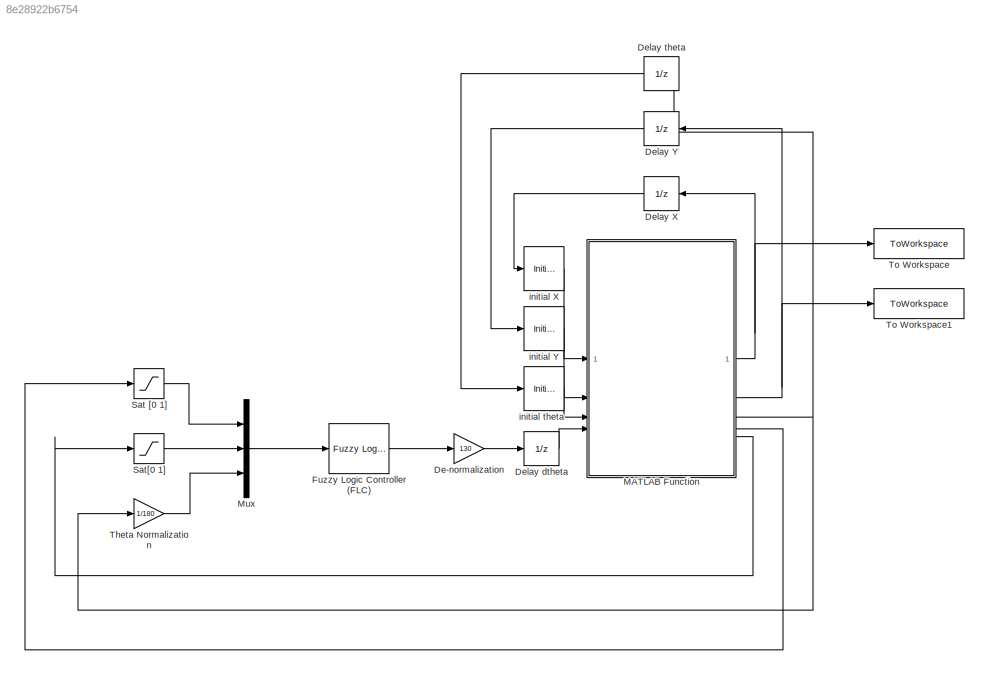
MODEL slx_8e28922b6754
KIND model
CONFIG AbsTol = auto
CONFIG EnableMultiTasking = off
CONFIG FixedStep = auto
CONFIG MaxStep = auto
CONFIG MinStep = auto
CONFIG RelTol = 1e-3
CONFIG SampleTimeConstraint = Unconstrained
CONFIG SolverName = VariableStepAuto
CONFIG StartTime = 0.0
CONFIG StopTime = 300
BLOCK [Gain] De-normalization
  Gain = 130
BLOCK [UnitDelay] Delay X
  HasFrameUpgradeWarning = on
  SampleTime = 0.1
BLOCK [UnitDelay] Delay Y
  HasFrameUpgradeWarning = on
  SampleTime = 0.1
BLOCK [UnitDelay] Delay dtheta
  HasFrameUpgradeWarning = on
  SampleTime = 0.1
BLOCK [UnitDelay] Delay theta
  HasFrameUpgradeWarning = on
  SampleTime = 0.1
BLOCK [Reference] Fuzzy Logic Controller (FLC)  REF=fuzblock/Fuzzy Logic   (lib defined in mdl_858b3b3e7478)
Controller 
with Ruleviewer
  SourceBlock = fuzblock/Fuzzy Logic \nController \nwith Ruleviewer
  SourceType = Fuzzy Inference System
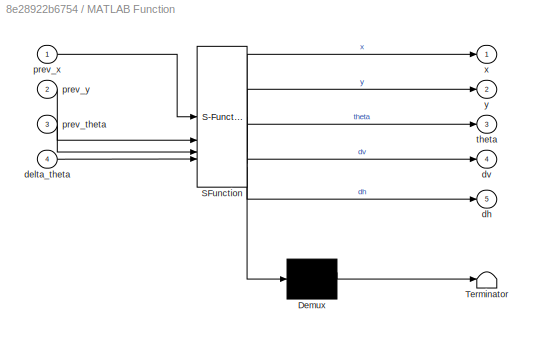
BLOCK [SubSystem] MATLAB Function
  ErrorFcn = Stateflow.Translate.translate
  PermitHierarchicalResolution = ExplicitOnly
  SFBlockType = MATLAB Function
  TreatAsAtomicUnit = on
BLOCK [Demux] MATLAB Function/ Demux 
  Outputs = 1
BLOCK [S-Function] MATLAB Function/ SFunction 
  EnableBusSupport = on
  FunctionName = sf_sfun
  PortCounts = [4 6]
  SFcnIsStateOwnerBlock = off
  SFunctionDeploymentMode = off
  Tag = Stateflow S-Function 2
BLOCK [Terminator] MATLAB Function/ Terminator 
BLOCK [Inport] MATLAB Function/delta_theta
  Port = 4
BLOCK [Outport] MATLAB Function/dh
  Port = 5
BLOCK [Outport] MATLAB Function/dv
  Port = 4
BLOCK [Inport] MATLAB Function/prev_theta
  Port = 3
BLOCK [Inport] MATLAB Function/prev_x
BLOCK [Inport] MATLAB Function/prev_y
  Port = 2
BLOCK [Outport] MATLAB Function/theta
  Port = 3
BLOCK [Outport] MATLAB Function/x
BLOCK [Outport] MATLAB Function/y
  Port = 2
BLOCK [Mux] Mux
  DisplayOption = bar
  Inputs = 3
BLOCK [Saturate] Sat [0 1]
  LowerLimit = 0
  UpperLimit = 1
BLOCK [Saturate] Sat[0 1]
  LowerLimit = 0
  UpperLimit = 1
BLOCK [Gain] Theta Normalization
  Gain = 1/180
BLOCK [ToWorkspace] To Workspace
  FixptAsFi = on
  MaxDataPoints = inf
  SampleTime = -1
  SaveFormat = Timeseries
  VariableName = X
BLOCK [ToWorkspace] To Workspace1
  FixptAsFi = on
  MaxDataPoints = inf
  SampleTime = -1
  SaveFormat = Timeseries
  VariableName = Y
BLOCK [InitialCondition] initial X
  Value = 4.1
BLOCK [InitialCondition] initial Y
  Value = 0.3
BLOCK [InitialCondition] initial theta
  Value = -90
LINE De-normalization:1 -> Delay dtheta:1
LINE Delay X:1 -> initial X:1
LINE Delay Y:1 -> initial Y:1
LINE Delay dtheta:1 -> MATLAB Function:4
LINE Delay theta:1 -> initial theta:1
LINE Fuzzy Logic Controller (FLC):1 -> De-normalization:1
NET MATLAB Function:1 -> Delay X:1, To Workspace:1
NET MATLAB Function:2 -> Delay Y:1, To Workspace1:1
NET MATLAB Function:3 -> Delay theta:1, Theta Normalization:1
LINE MATLAB Function:4 -> Sat [0 1]:1
LINE MATLAB Function:5 -> Sat[0 1]:1
LINE Mux:1 -> Fuzzy Logic Controller (FLC):1
LINE Sat [0 1]:1 -> Mux:1
LINE Sat[0 1]:1 -> Mux:2
LINE Theta Normalization:1 -> Mux:3
LINE initial X:1 -> MATLAB Function:1
LINE initial Y:1 -> MATLAB Function:2
LINE initial theta:1 -> MATLAB Function:3
note: NET lines group one-source signal fan-out (src -> all destinations, sorted); 1:1 wires keep LINE
CHART MATLAB Function states=1 transitions=1
  STATE_LABEL 'eML_blk_kernel()'
  STATE_LABEL "SCRIPT:\n% A function that represents the sensors of the car, setting the boundaries\n% for any change on the car's route\n\nfunction [x, y, theta, dv, dh] = car_sensors(prev_x, prev_y, prev_theta, delta_theta)\n    \n    if(prev_x >= 10)\n        u = 0;\n    else\n        u = 0.05;       % Speed\n    end\n    \n    t = 0.1;       % Delay between each calculation\n    \n    % Calculate the new angle of the car:...<+793ch>"
CHART  states=0 transitions=0
